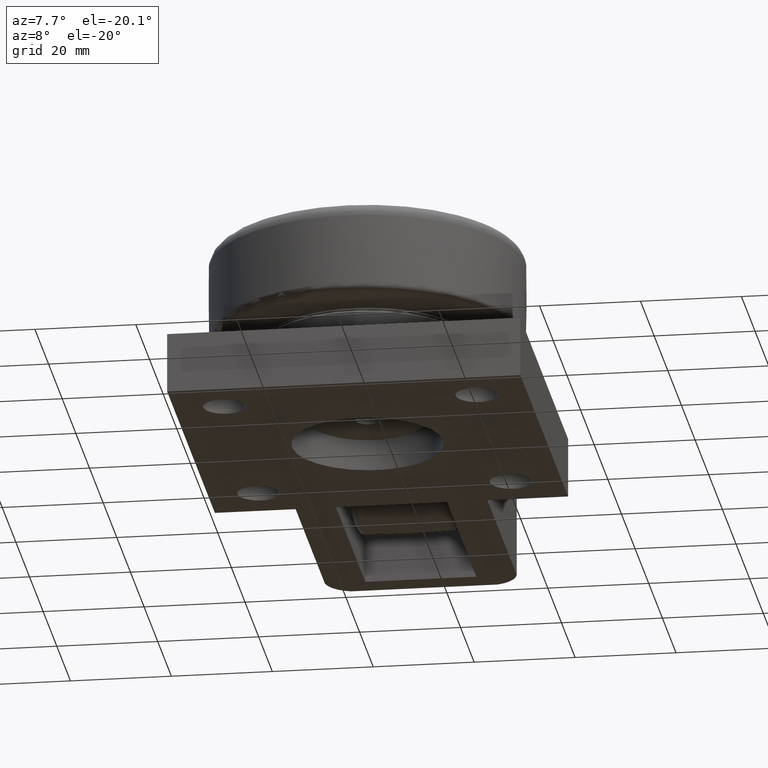
[diagram: clean part render]
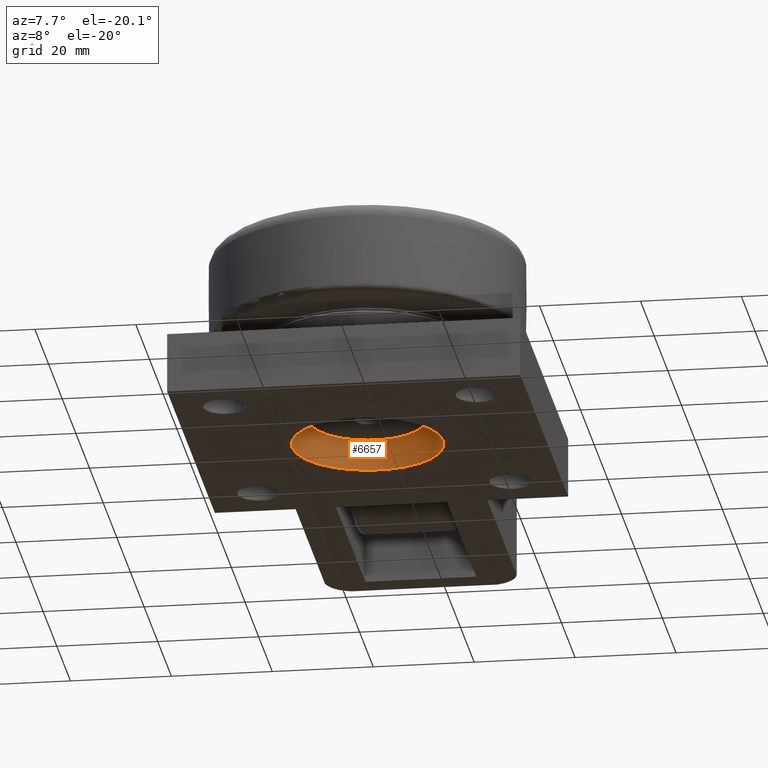
[diagram: same view with one face highlighted and labeled with its STEP entity id]
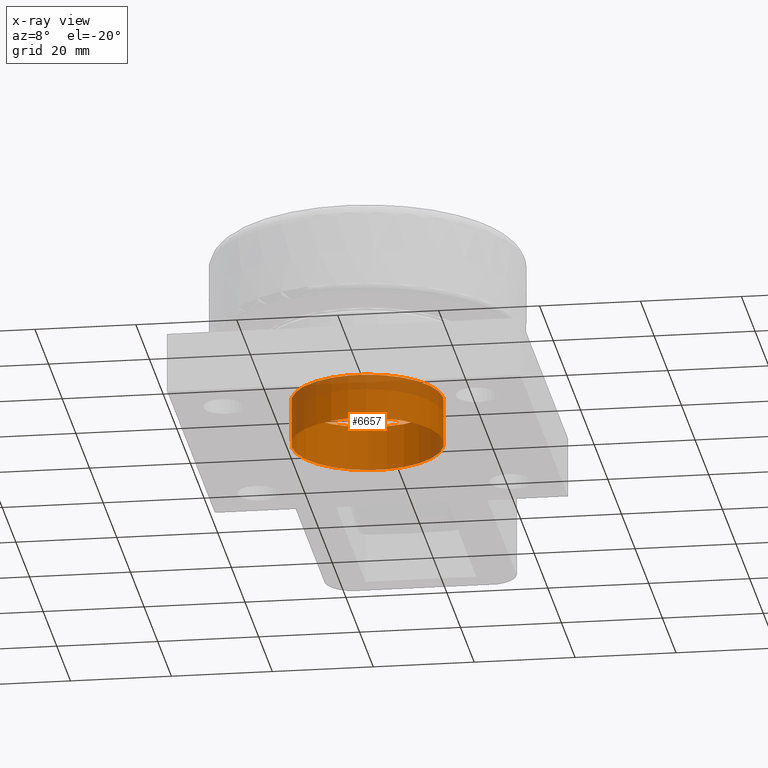
[diagram: x-ray of the same camera — body ghosted, the highlighted face saturated]
A machine part, auxiliary view. The second image highlights one B-rep face of the part: STEP entity #6657.
The next image is the same camera in x-ray: the body ghosted, the highlighted face saturated — about 18% of this face is hidden behind the body in this view.
In plain terms, the highlighted cylindrical surface (bore or boss wall) has radius 15 mm, axis along (0, 0, -1).
Its self-contained STEP definition (entity closure, byte-faithful):
#384=FACE_OUTER_BOUND('',#765,.T.);
#765=EDGE_LOOP('',(#4551,#4552,#4553,#4554,#4555));
#1141=CIRCLE('',#7050,15.);
#1173=CIRCLE('',#7098,15.);
#1174=CIRCLE('',#7099,15.);
#1965=LINE('',#11091,#2302);
#2302=VECTOR('',#8406,15.);
#2603=VERTEX_POINT('',#10926);
#2666=VERTEX_POINT('',#11088);
#2667=VERTEX_POINT('',#11089);
#3276=EDGE_CURVE('',#2603,#2603,#1141,.T.);
#3359=EDGE_CURVE('',#2666,#2667,#1173,.T.);
#3360=EDGE_CURVE('',#2667,#2603,#1965,.T.);
#3361=EDGE_CURVE('',#2667,#2666,#1174,.T.);
#4551=ORIENTED_EDGE('',*,*,#3359,.T.);
#4552=ORIENTED_EDGE('',*,*,#3360,.T.);
#4553=ORIENTED_EDGE('',*,*,#3276,.F.);
#4554=ORIENTED_EDGE('',*,*,#3360,.F.);
#4555=ORIENTED_EDGE('',*,*,#3361,.T.);
#6506=CYLINDRICAL_SURFACE('',#7097,15.);
#6657=ADVANCED_FACE('',(#384),#6506,.F.);
#7050=AXIS2_PLACEMENT_3D('',#10927,#8257,#8258);
#7097=AXIS2_PLACEMENT_3D('',#11087,#8402,#8403);
#7098=AXIS2_PLACEMENT_3D('',#11090,#8404,#8405);
#7099=AXIS2_PLACEMENT_3D('',#11092,#8407,#8408);
#8257=DIRECTION('center_axis',(0.,0.,1.));
#8258=DIRECTION('ref_axis',(-1.,0.,0.));
#8402=DIRECTION('center_axis',(0.,0.,-1.));
#8403=DIRECTION('ref_axis',(-1.,0.,0.));
#8404=DIRECTION('center_axis',(0.,0.,1.));
#8405=DIRECTION('ref_axis',(-1.,0.,0.));
#8406=DIRECTION('',(0.,0.,-1.));
#8407=DIRECTION('center_axis',(0.,0.,1.));
#8408=DIRECTION('ref_axis',(-1.,0.,0.));
#10926=CARTESIAN_POINT('',(10.180250509928,-20.4733542845261,-20.));
#10927=CARTESIAN_POINT('Origin',(-4.81974949007196,-20.4733542845261,-20.));
#11087=CARTESIAN_POINT('Origin',(-4.81974949007196,-20.4733542845261,-8.));
#11088=CARTESIAN_POINT('',(-19.819749490072,-20.4733542845261,-11.));
#11089=CARTESIAN_POINT('',(10.180250509928,-20.4733542845261,-11.));
#11090=CARTESIAN_POINT('Origin',(-4.81974949007196,-20.4733542845261,-11.));
#11091=CARTESIAN_POINT('',(10.180250509928,-20.4733542845261,-8.));
#11092=CARTESIAN_POINT('Origin',(-4.81974949007196,-20.4733542845261,-11.));